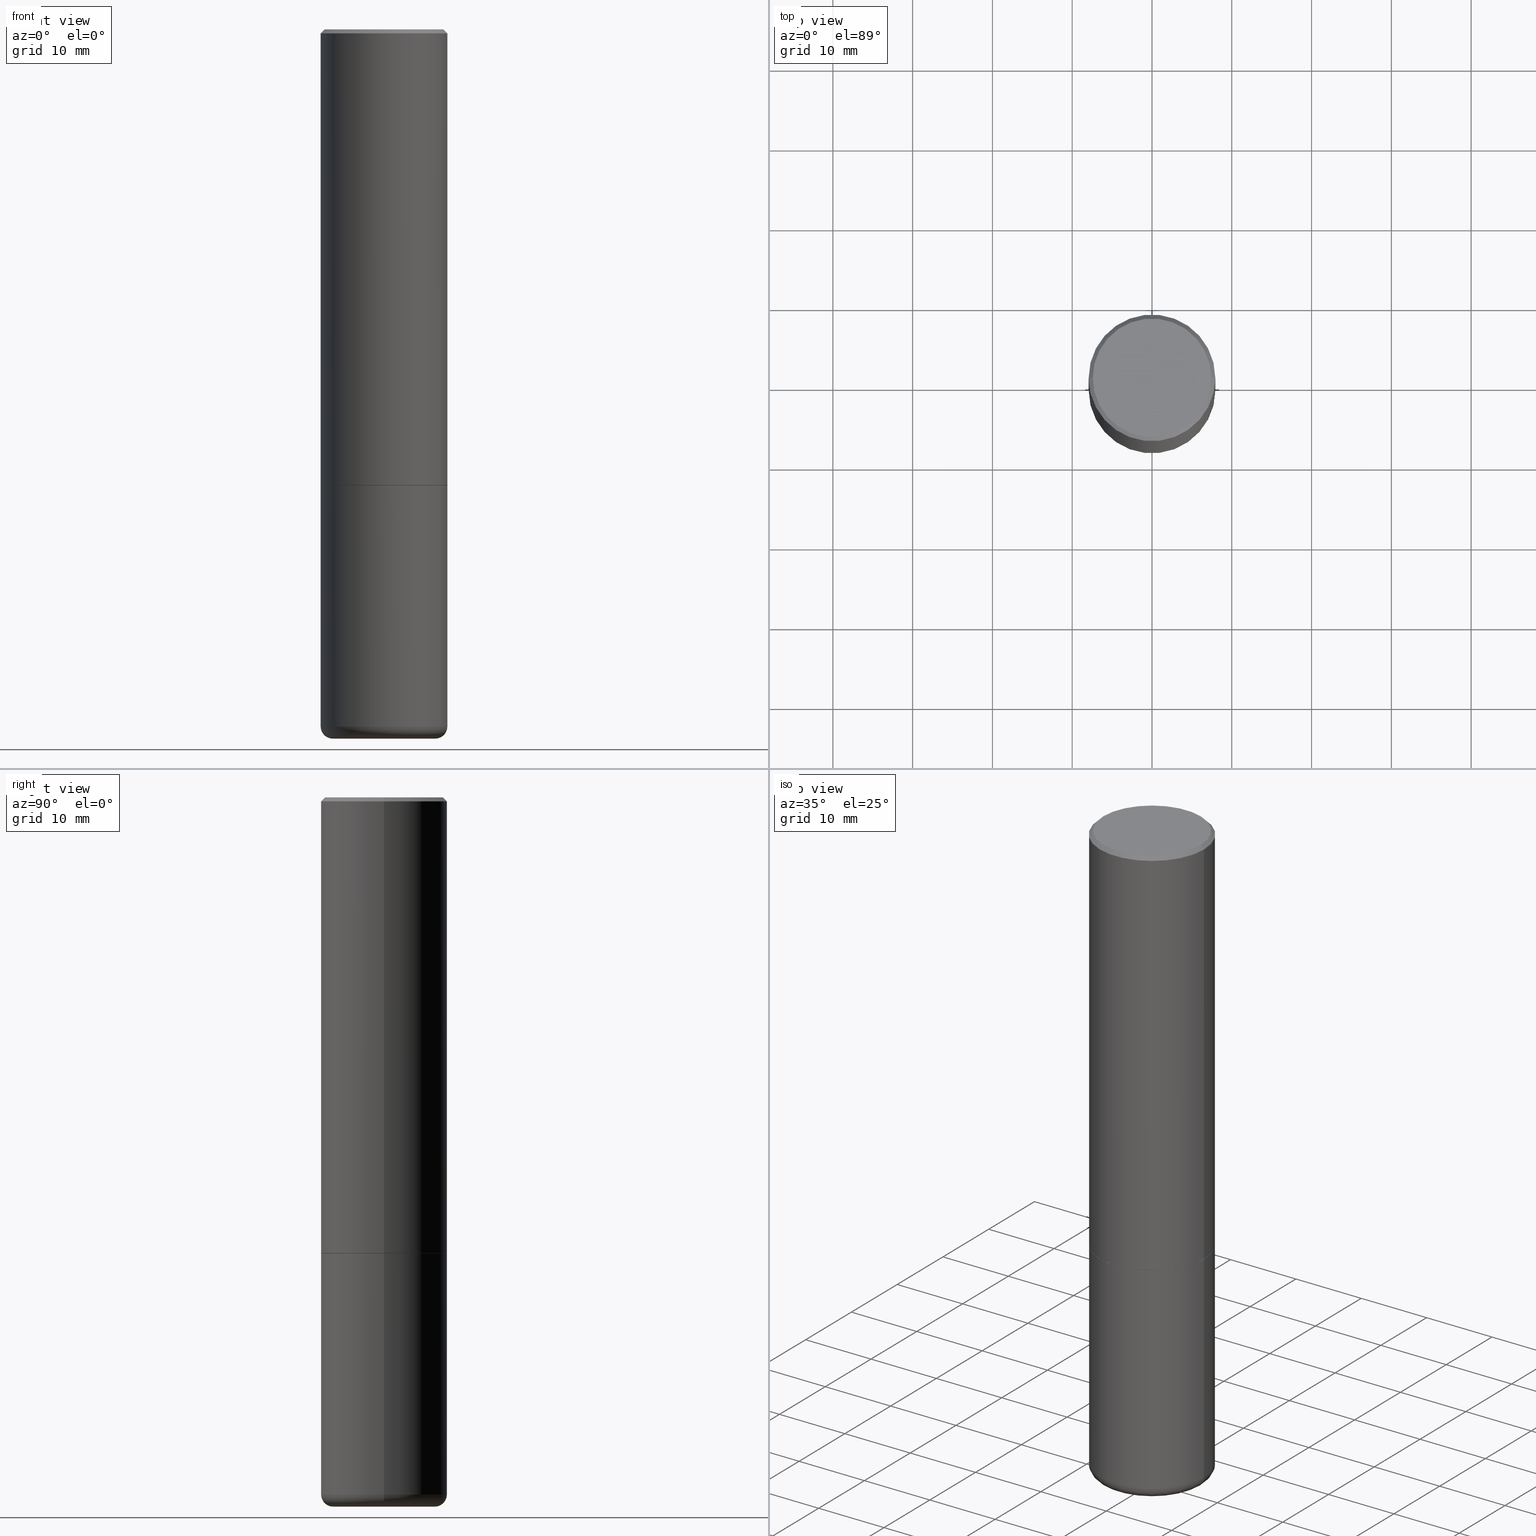
[diagram: canonical four-view strip — front | top / right | iso, engineering-drawing reading convention]
A machine part, canonical four-view strip (front | top / right | iso — engineering-drawing reading convention). The complete STEP part file that produces these views, byte-faithful:
ISO-10303-21;
HEADER;
FILE_DESCRIPTION (( 'STEP AP203' ),
    '1' );
FILE_NAME ('37270.STEP',
    '2024-03-01T22:48:51',
    ( '' ),
    ( '' ),
    'SwSTEP 2.0',
    'SolidWorks 2023',
    '' );
FILE_SCHEMA (( 'CONFIG_CONTROL_DESIGN' ));
ENDSEC;

DATA;
#1 = PLANE ( 'NONE',  #211 ) ;
#2 = ADVANCED_FACE ( 'NONE', ( #69 ), #208, .F. ) ;
#3 = DIRECTION ( 'NONE',  ( 1.000000000000000000, -6.982962677686265922E-15, 4.876176775795935793E-29 ) ) ;
#4 = CIRCLE ( 'NONE', #332, 0.3114999999999999991 ) ;
#5 = CARTESIAN_POINT ( 'NONE',  ( 0.000000000000000000, 0.000000000000000000, 0.000000000000000000 ) ) ;
#6 = CIRCLE ( 'NONE', #351, 0.3125000000000002220 ) ;
#7 = CARTESIAN_POINT ( 'NONE',  ( 8.412412693276869938E-29, -1.201069580562042103E-14, -3.439999999999999947 ) ) ;
#8 = VERTEX_POINT ( 'NONE', #393 ) ;
#9 = ORIENTED_EDGE ( 'NONE', *, *, #369, .T. ) ;
#10 = ORIENTED_EDGE ( 'NONE', *, *, #31, .F. ) ;
#11 = DIRECTION ( 'NONE',  ( -2.445468806185136877E-29, 3.491481338843145188E-15, 1.000000000000000000 ) ) ;
#12 = ADVANCED_FACE ( 'NONE', ( #176 ), #205, .T. ) ;
#13 = VECTOR ( 'NONE', #11, 39.37007874015748143 ) ;
#14 = ORIENTED_EDGE ( 'NONE', *, *, #95, .T. ) ;
#15 = CARTESIAN_POINT ( 'NONE',  ( 4.890937612370294178E-31, -6.982962677686321191E-17, -0.02000000000000008715 ) ) ;
#16 = ORIENTED_EDGE ( 'NONE', *, *, #244, .F. ) ;
#17 = DIRECTION ( 'NONE',  ( -2.445468806185136597E-29, 3.491481338843145583E-15, 1.000000000000000000 ) ) ;
#18 = CALENDAR_DATE ( 2024, 1, 3 ) ;
#19 = ADVANCED_FACE ( 'NONE', ( #397 ), #74, .T. ) ;
#20 = CARTESIAN_POINT ( 'NONE',  ( 0.000000000000000000, 0.000000000000000000, 0.000000000000000000 ) ) ;
#21 = CIRCLE ( 'NONE', #406, 0.2525000000000000022 ) ;
#22 = CC_DESIGN_APPROVAL ( #408, ( #266 ) ) ;
#23 = DIRECTION ( 'NONE',  ( 1.000000000000000000, -6.982962677686269866E-15, 0.000000000000000000 ) ) ;
#24 = DIRECTION ( 'NONE',  ( 1.000000000000000000, -6.982962677686269077E-15, 0.000000000000000000 ) ) ;
#25 = CARTESIAN_POINT ( 'NONE',  ( 5.502304813916556222E-29, -7.855833012397076871E-15, -2.249999999999999556 ) ) ;
#26 = EDGE_CURVE ( 'NONE', #8, #279, #212, .T. ) ;
#27 = AXIS2_PLACEMENT_3D ( 'NONE', #384, #292, #140 ) ;
#28 = CC_DESIGN_SECURITY_CLASSIFICATION ( #266, ( #203 ) ) ;
#29 = PRODUCT ( '37270', '37270', '', ( #402 ) ) ;
#30 = ORIENTED_EDGE ( 'NONE', *, *, #178, .F. ) ;
#31 = EDGE_CURVE ( 'NONE', #8, #308, #360, .T. ) ;
#32 = CARTESIAN_POINT ( 'NONE',  ( 0.2525000000000000022, -1.377389388173620432E-14, -3.439999999999999947 ) ) ;
#33 = VECTOR ( 'NONE', #378, 39.37007874015748143 ) ;
#34 = DIRECTION ( 'NONE',  ( 1.000000000000000000, -6.982962677686266711E-15, 4.873475059489872853E-29 ) ) ;
#35 = DIRECTION ( 'NONE',  ( 1.000000000000000000, -6.982962677686264344E-15, 4.883557194083111780E-29 ) ) ;
#36 = DIRECTION ( 'NONE',  ( 1.000000000000000000, -6.982962677686265922E-15, 0.000000000000000000 ) ) ;
#37 = ORIENTED_EDGE ( 'NONE', *, *, #52, .F. ) ;
#38 = ORIENTED_EDGE ( 'NONE', *, *, #264, .F. ) ;
#39 = CC_DESIGN_PERSON_AND_ORGANIZATION_ASSIGNMENT ( #85, #126, ( #203 ) ) ;
#40 = DIRECTION ( 'NONE',  ( -1.000000000000000000, 7.105427357600997914E-15, 0.000000000000000000 ) ) ;
#41 = VERTEX_POINT ( 'NONE', #106 ) ;
#42 = FACE_OUTER_BOUND ( 'NONE', #405, .T. ) ;
#43 = ORIENTED_EDGE ( 'NONE', *, *, #197, .T. ) ;
#44 = ADVANCED_FACE ( 'NONE', ( #150 ), #45, .T. ) ;
#45 = CYLINDRICAL_SURFACE ( 'NONE', #241, 0.3125000000000000000 ) ;
#46 = DATE_TIME_ROLE ( 'classification_date' ) ;
#47 = DIRECTION ( 'NONE',  ( -2.445468806185136597E-29, 3.491481338843145583E-15, 1.000000000000000000 ) ) ;
#48 = ORIENTED_EDGE ( 'NONE', *, *, #60, .F. ) ;
#49 = CIRCLE ( 'NONE', #155, 0.2925000000000002043 ) ;
#50 = DIRECTION ( 'NONE',  ( -2.445468806185136877E-29, 3.491481338843145188E-15, 1.000000000000000000 ) ) ;
#51 = DATE_AND_TIME ( #364, #287 ) ;
#52 = EDGE_CURVE ( 'NONE', #237, #323, #271, .T. ) ;
#53 = FACE_OUTER_BOUND ( 'NONE', #263, .T. ) ;
#54 = PERSON_AND_ORGANIZATION ( #109, #96 ) ;
#55 = ORIENTED_EDGE ( 'NONE', *, *, #142, .F. ) ;
#56 = CARTESIAN_POINT ( 'NONE',  ( 0.3125000000000001665, -2.182175836776959530E-15, 1.523805242436230636E-29 ) ) ;
#57 = VECTOR ( 'NONE', #320, 39.37007874015748143 ) ;
#58 = VECTOR ( 'NONE', #338, 39.37007874015748143 ) ;
#59 = DIRECTION ( 'NONE',  ( -2.445468806185136597E-29, 3.491481338843145583E-15, 1.000000000000000000 ) ) ;
#60 = EDGE_CURVE ( 'NONE', #298, #361, #174, .T. ) ;
#61 = EDGE_LOOP ( 'NONE', ( #168, #184 ) ) ;
#62 = CIRCLE ( 'NONE', #261, 0.05999999999999966471 ) ;
#63 = CC_DESIGN_APPROVAL ( #381, ( #203 ) ) ;
#64 = EDGE_CURVE ( 'NONE', #323, #361, #111, .T. ) ;
#65 = DIRECTION ( 'NONE',  ( 2.438088387897960049E-29, -3.491481338843145188E-15, -1.000000000000000000 ) ) ;
#66 = CONICAL_SURFACE ( 'NONE', #112, 0.3114999999999999991, 0.7853981633975165577 ) ;
#67 =( CONVERSION_BASED_UNIT ( 'INCH', #268 ) LENGTH_UNIT ( ) NAMED_UNIT ( #179 ) );
#68 = VERTEX_POINT ( 'NONE', #88 ) ;
#69 = FACE_OUTER_BOUND ( 'NONE', #61, .T. ) ;
#70 = DIRECTION ( 'NONE',  ( -2.445468806185136597E-29, 3.491481338843145583E-15, 1.000000000000000000 ) ) ;
#71 = VERTEX_POINT ( 'NONE', #336 ) ;
#72 = ORIENTED_EDGE ( 'NONE', *, *, #98, .F. ) ;
#73 = DIRECTION ( 'NONE',  ( -2.445468806185136597E-29, 3.491481338843145583E-15, 1.000000000000000000 ) ) ;
#74 = TOROIDAL_SURFACE ( 'NONE', #137, 0.2525000000000000022, 0.05999999999999968553 ) ;
#75 = CIRCLE ( 'NONE', #132, 0.3125000000000000000 ) ;
#76 = FACE_OUTER_BOUND ( 'NONE', #90, .T. ) ;
#77 = ORIENTED_EDGE ( 'NONE', *, *, #283, .T. ) ;
#78 = DIRECTION ( 'NONE',  ( -2.445468806185136597E-29, 3.491481338843145583E-15, 1.000000000000000000 ) ) ;
#79 = DATE_AND_TIME ( #297, #416 ) ;
#80 = ORIENTED_EDGE ( 'NONE', *, *, #264, .T. ) ;
#81 = DIRECTION ( 'NONE',  ( 0.7071067811865957564, -2.468850131082761932E-15, 0.7071067811864992780 ) ) ;
#82 = APPROVAL_DATE_TIME ( #113, #408 ) ;
#83 = ORIENTED_EDGE ( 'NONE', *, *, #369, .F. ) ;
#84 = CARTESIAN_POINT ( 'NONE',  ( 8.412412693276869938E-29, -1.201069580562042103E-14, -3.439999999999999947 ) ) ;
#85 = PERSON_AND_ORGANIZATION ( #109, #96 ) ;
#86 = ORIENTED_EDGE ( 'NONE', *, *, #355, .T. ) ;
#87 =( GEOMETRIC_REPRESENTATION_CONTEXT ( 3 ) GLOBAL_UNCERTAINTY_ASSIGNED_CONTEXT ( ( #217 ) ) GLOBAL_UNIT_ASSIGNED_CONTEXT ( ( #67, #324, #289 ) ) REPRESENTATION_CONTEXT ( 'NONE', 'WORKASPACE' ) );
#88 = CARTESIAN_POINT ( 'NONE',  ( -0.2925000000000002043, 2.077431396611664583E-15, -2.433052119357378304E-16 ) ) ;
#89 = SECURITY_CLASSIFICATION_LEVEL ( 'unclassified' ) ;
#90 = EDGE_LOOP ( 'NONE', ( #276, #86, #14, #255 ) ) ;
#91 = DIRECTION ( 'NONE',  ( 1.000000000000000000, -6.982962677686265133E-15, 0.000000000000000000 ) ) ;
#92 = PERSON_AND_ORGANIZATION ( #109, #96 ) ;
#93 = DIRECTION ( 'NONE',  ( -2.445468806185136597E-29, 3.491481338843145583E-15, 1.000000000000000000 ) ) ;
#94 = LINE ( 'NONE', #229, #309 ) ;
#95 = EDGE_CURVE ( 'NONE', #71, #41, #310, .T. ) ;
#96 = ORGANIZATION ( 'UNSPECIFIED', 'UNSPECIFIED', '' ) ;
#97 = CARTESIAN_POINT ( 'NONE',  ( 2.042516583223234512E-15, 0.2925000000000002043, -1.142910897579482572E-15 ) ) ;
#98 = EDGE_CURVE ( 'NONE', #361, #323, #75, .T. ) ;
#99 = CIRCLE ( 'NONE', #327, 0.3125000000000002220 ) ;
#100 = APPROVAL_PERSON_ORGANIZATION ( #92, #381, #373 ) ;
#101 = DIRECTION ( 'NONE',  ( 1.000000000000000000, -6.982962677686266711E-15, 4.876176775795935232E-29 ) ) ;
#102 = DIRECTION ( 'NONE',  ( 1.000000000000000000, -6.982962677686265922E-15, 0.000000000000000000 ) ) ;
#103 = EDGE_CURVE ( 'NONE', #119, #171, #21, .T. ) ;
#104 = CARTESIAN_POINT ( 'NONE',  ( 4.890937612370294178E-31, -6.982962677686321191E-17, -0.02000000000000008715 ) ) ;
#105 = DIRECTION ( 'NONE',  ( -2.445468806185136597E-29, 3.491481338843145583E-15, 1.000000000000000000 ) ) ;
#106 = CARTESIAN_POINT ( 'NONE',  ( 0.3125000000000002220, -1.003451736783519379E-14, -2.248999999999999666 ) ) ;
#107 = CARTESIAN_POINT ( 'NONE',  ( 5.949953061710752563E-45, -8.494956071168549013E-31, -2.433052119357234336E-16 ) ) ;
#108 = ORIENTED_EDGE ( 'NONE', *, *, #26, .T. ) ;
#109 = PERSON ( 'UNSPECIFIED', 'UNSPECIFIED', 'UNSPECIFIED', ('UNSPECIFIED'), ('UNSPECIFIED'), ('UNSPECIFIED') ) ;
#110 = DIRECTION ( 'NONE',  ( -2.445468806185136597E-29, 3.491481338843145583E-15, 1.000000000000000000 ) ) ;
#111 = CIRCLE ( 'NONE', #221, 0.3125000000000000000 ) ;
#112 = AXIS2_PLACEMENT_3D ( 'NONE', #387, #213, #36 ) ;
#113 = DATE_AND_TIME ( #300, #148 ) ;
#114 = CARTESIAN_POINT ( 'NONE',  ( 5.502304813916556222E-29, -7.855833012397076871E-15, -2.249999999999999556 ) ) ;
#115 = EDGE_LOOP ( 'NONE', ( #55, #363, #108, #330 ) ) ;
#116 = CARTESIAN_POINT ( 'NONE',  ( 0.3125000000000000000, -2.213735251080466911E-15, -0.02000000000000008715 ) ) ;
#117 = DESIGN_CONTEXT ( 'detailed design', #280, 'design' ) ;
#118 = DATE_AND_TIME ( #214, #294 ) ;
#119 = VERTEX_POINT ( 'NONE', #377 ) ;
#120 = CYLINDRICAL_SURFACE ( 'NONE', #146, 0.3125000000000000000 ) ;
#121 = APPROVAL_STATUS ( 'not_yet_approved' ) ;
#122 = DIRECTION ( 'NONE',  ( -2.445468806185136597E-29, 3.491481338843145583E-15, 1.000000000000000000 ) ) ;
#123 = PERSON_AND_ORGANIZATION_ROLE ( 'classification_officer' ) ;
#124 = AXIS2_PLACEMENT_3D ( 'NONE', #20, #245, #272 ) ;
#125 = CARTESIAN_POINT ( 'NONE',  ( 0.3125000000000000000, -2.213735251080466911E-15, -0.02000000000000008715 ) ) ;
#126 = PERSON_AND_ORGANIZATION_ROLE ( 'creator' ) ;
#127 = CARTESIAN_POINT ( 'NONE',  ( 8.559140821647976968E-29, -1.222018468595100619E-14, -3.499999999999999112 ) ) ;
#128 = ADVANCED_FACE ( 'NONE', ( #160 ), #331, .T. ) ;
#129 = CARTESIAN_POINT ( 'NONE',  ( -0.3124999999999998890, -9.790249756370109522E-15, -3.439999999999999947 ) ) ;
#130 = DIRECTION ( 'NONE',  ( 1.000000000000000000, -6.982962677686269077E-15, 0.000000000000000000 ) ) ;
#131 = CLOSED_SHELL ( 'NONE', ( #164, #133, #346, #44, #19, #233 ) ) ;
#132 = AXIS2_PLACEMENT_3D ( 'NONE', #306, #375, #91 ) ;
#133 = ADVANCED_FACE ( 'NONE', ( #53 ), #180, .T. ) ;
#134 = PLANE ( 'NONE',  #278 ) ;
#135 = ORIENTED_EDGE ( 'NONE', *, *, #244, .T. ) ;
#136 = DIRECTION ( 'NONE',  ( 2.438088387897960049E-29, -3.491481338843145188E-15, -1.000000000000000000 ) ) ;
#137 = AXIS2_PLACEMENT_3D ( 'NONE', #181, #110, #35 ) ;
#138 = AXIS2_PLACEMENT_3D ( 'NONE', #175, #105, #318 ) ;
#139 = LOCAL_TIME ( 17, 48, 51.00000000000000000, #254 ) ;
#140 = DIRECTION ( 'NONE',  ( -1.000000000000000000, 6.982962677686268288E-15, 0.000000000000000000 ) ) ;
#141 = EDGE_LOOP ( 'NONE', ( #143, #215, #392, #328 ) ) ;
#142 = EDGE_CURVE ( 'NONE', #308, #326, #304, .T. ) ;
#143 = ORIENTED_EDGE ( 'NONE', *, *, #178, .T. ) ;
#144 = CARTESIAN_POINT ( 'NONE',  ( 5.502304813916556222E-29, -7.855833012397076871E-15, -2.249999999999999556 ) ) ;
#145 = DIRECTION ( 'NONE',  ( 1.000000000000000000, -6.982962677686269077E-15, 0.000000000000000000 ) ) ;
#146 = AXIS2_PLACEMENT_3D ( 'NONE', #411, #198, #281 ) ;
#147 = ORIENTED_EDGE ( 'NONE', *, *, #52, .T. ) ;
#148 = LOCAL_TIME ( 17, 48, 51.00000000000000000, #367 ) ;
#149 = EDGE_CURVE ( 'NONE', #41, #323, #227, .T. ) ;
#150 = FACE_OUTER_BOUND ( 'NONE', #115, .T. ) ;
#151 = DIRECTION ( 'NONE',  ( 0.000000000000000000, 0.000000000000000000, 1.000000000000000000 ) ) ;
#152 = CARTESIAN_POINT ( 'NONE',  ( 5.502304813916556222E-29, -7.855833012397076871E-15, -2.249999999999999556 ) ) ;
#153 = EDGE_LOOP ( 'NONE', ( #399, #206, #16, #410 ) ) ;
#154 = DIRECTION ( 'NONE',  ( 1.000000000000000000, -6.982962677686266711E-15, 4.876176775795936353E-29 ) ) ;
#155 = AXIS2_PLACEMENT_3D ( 'NONE', #107, #209, #34 ) ;
#156 = CARTESIAN_POINT ( 'NONE',  ( 8.559140821647976968E-29, -1.222018468595100619E-14, -3.499999999999999112 ) ) ;
#157 = PERSON_AND_ORGANIZATION ( #109, #96 ) ;
#158 = EDGE_LOOP ( 'NONE', ( #201, #196 ) ) ;
#159 = DIRECTION ( 'NONE',  ( 1.000000000000000000, -6.982962677686264344E-15, 4.883557194083111780E-29 ) ) ;
#160 = FACE_OUTER_BOUND ( 'NONE', #353, .T. ) ;
#161 = CIRCLE ( 'NONE', #348, 0.3125000000000000000 ) ;
#162 = ORIENTED_EDGE ( 'NONE', *, *, #385, .T. ) ;
#163 = CARTESIAN_POINT ( 'NONE',  ( -0.3125000000000000000, 2.220446049250313081E-15, -1.537167215704658232E-29 ) ) ;
#164 = ADVANCED_FACE ( 'NONE', ( #302 ), #120, .T. ) ;
#165 = PLANE ( 'NONE',  #284 ) ;
#166 = CARTESIAN_POINT ( 'NONE',  ( -0.3114999999999999991, -5.637193936156142396E-15, -2.249999999999999556 ) ) ;
#167 = AXIS2_PLACEMENT_3D ( 'NONE', #312, #182, #101 ) ;
#168 = ORIENTED_EDGE ( 'NONE', *, *, #296, .F. ) ;
#169 = AXIS2_PLACEMENT_3D ( 'NONE', #127, #47, #248 ) ;
#170 = EDGE_CURVE ( 'NONE', #171, #119, #232, .T. ) ;
#171 = VERTEX_POINT ( 'NONE', #403 ) ;
#172 = DIRECTION ( 'NONE',  ( 1.000000000000000000, -6.982962677686266711E-15, 0.000000000000000000 ) ) ;
#173 = DIRECTION ( 'NONE',  ( 1.000000000000000000, -6.982962677686275388E-15, 0.000000000000000000 ) ) ;
#174 = LINE ( 'NONE', #366, #414 ) ;
#175 = CARTESIAN_POINT ( 'NONE',  ( 5.502304813916556222E-29, -7.855833012397076871E-15, -2.249999999999999556 ) ) ;
#176 = FACE_OUTER_BOUND ( 'NONE', #313, .T. ) ;
#177 = APPLICATION_CONTEXT ( 'configuration controlled 3d designs of mechanical parts and assemblies' ) ;
#178 = EDGE_CURVE ( 'NONE', #41, #298, #6, .T. ) ;
#179 = DIMENSIONAL_EXPONENTS ( 1.000000000000000000, 0.000000000000000000, 0.000000000000000000, 0.000000000000000000, 0.000000000000000000, 0.000000000000000000, 0.000000000000000000 ) ;
#180 = TOROIDAL_SURFACE ( 'NONE', #242, 0.2525000000000000022, 0.05999999999999968553 ) ;
#181 = CARTESIAN_POINT ( 'NONE',  ( 8.412412693276869938E-29, -1.201069580562042103E-14, -3.439999999999999947 ) ) ;
#182 = DIRECTION ( 'NONE',  ( -2.445468806185136597E-29, 3.491481338843145583E-15, 1.000000000000000000 ) ) ;
#183 = DIRECTION ( 'NONE',  ( -1.000000000000000000, 6.982962677686265922E-15, -4.876176775795935793E-29 ) ) ;
#184 = ORIENTED_EDGE ( 'NONE', *, *, #355, .F. ) ;
#185 = ORIENTED_EDGE ( 'NONE', *, *, #149, .T. ) ;
#186 = APPROVAL_ROLE ( '' ) ;
#187 = DIRECTION ( 'NONE',  ( 1.000000000000000000, -6.982962677686265922E-15, 0.000000000000000000 ) ) ;
#188 = CARTESIAN_POINT ( 'NONE',  ( 8.412412693276869938E-29, -1.201069580562042103E-14, -3.439999999999999947 ) ) ;
#189 = AXIS2_PLACEMENT_3D ( 'NONE', #7, #78, #329 ) ;
#190 = CIRCLE ( 'NONE', #199, 0.05999999999999966471 ) ;
#191 = APPROVAL_DATE_TIME ( #118, #340 ) ;
#192 = CC_DESIGN_DATE_AND_TIME_ASSIGNMENT ( #79, #46, ( #266 ) ) ;
#193 = CARTESIAN_POINT ( 'NONE',  ( 0.2925000000000002043, -2.110215457714321114E-15, -2.433052119357089383E-16 ) ) ;
#194 = ORIENTED_EDGE ( 'NONE', *, *, #64, .T. ) ;
#195 = CARTESIAN_POINT ( 'NONE',  ( 1.384764569555243428E-28, -4.646744703515429439E-15, -3.499999999999999112 ) ) ;
#196 = ORIENTED_EDGE ( 'NONE', *, *, #170, .F. ) ;
#197 = EDGE_CURVE ( 'NONE', #68, #361, #94, .T. ) ;
#198 = DIRECTION ( 'NONE',  ( -2.445468806185136597E-29, 3.491481338843145583E-15, 1.000000000000000000 ) ) ;
#199 = AXIS2_PLACEMENT_3D ( 'NONE', #325, #359, #40 ) ;
#200 = DIRECTION ( 'NONE',  ( 1.000000000000000000, -6.982962677686266711E-15, 4.873475059489872853E-29 ) ) ;
#201 = ORIENTED_EDGE ( 'NONE', *, *, #103, .F. ) ;
#202 = AXIS2_PLACEMENT_3D ( 'NONE', #5, #151, #391 ) ;
#203 = PRODUCT_DEFINITION_FORMATION_WITH_SPECIFIED_SOURCE ( 'ANY', '', #29, .NOT_KNOWN. ) ;
#204 = FACE_OUTER_BOUND ( 'NONE', #295, .T. ) ;
#205 = CONICAL_SURFACE ( 'NONE', #386, 0.3125000000000000000, 0.7853981633974469467 ) ;
#206 = ORIENTED_EDGE ( 'NONE', *, *, #142, .T. ) ;
#207 = EDGE_CURVE ( 'NONE', #68, #237, #230, .T. ) ;
#208 = PLANE ( 'NONE',  #210 ) ;
#209 = DIRECTION ( 'NONE',  ( -2.445468806185136597E-29, 3.491481338843145583E-15, 1.000000000000000000 ) ) ;
#210 = AXIS2_PLACEMENT_3D ( 'NONE', #152, #390, #3 ) ;
#211 = AXIS2_PLACEMENT_3D ( 'NONE', #144, #65, #183 ) ;
#212 = LINE ( 'NONE', #299, #13 ) ;
#213 = DIRECTION ( 'NONE',  ( -2.445468806185136597E-29, 3.491481338843145583E-15, 1.000000000000000000 ) ) ;
#214 = CALENDAR_DATE ( 2024, 1, 3 ) ;
#215 = ORIENTED_EDGE ( 'NONE', *, *, #60, .T. ) ;
#216 = EDGE_CURVE ( 'NONE', #308, #8, #265, .T. ) ;
#217 = UNCERTAINTY_MEASURE_WITH_UNIT (LENGTH_MEASURE( 1.000000000000000082E-05 ), #67, 'distance_accuracy_value', 'NONE');
#218 = ORIENTED_EDGE ( 'NONE', *, *, #103, .T. ) ;
#219 = CARTESIAN_POINT ( 'NONE',  ( 5.499859345110371740E-29, -7.852341531058233864E-15, -2.248999999999999666 ) ) ;
#220 = FACE_OUTER_BOUND ( 'NONE', #158, .T. ) ;
#221 = AXIS2_PLACEMENT_3D ( 'NONE', #15, #17, #257 ) ;
#222 = APPROVAL_DATE_TIME ( #51, #381 ) ;
#223 = ORIENTED_EDGE ( 'NONE', *, *, #98, .T. ) ;
#224 = DIRECTION ( 'NONE',  ( -2.445468806185136597E-29, 3.491481338843145583E-15, 1.000000000000000000 ) ) ;
#225 = APPROVAL_STATUS ( 'not_yet_approved' ) ;
#226 = EDGE_LOOP ( 'NONE', ( #368, #9 ) ) ;
#227 = LINE ( 'NONE', #56, #388 ) ;
#228 = DATE_TIME_ROLE ( 'creation_date' ) ;
#229 = CARTESIAN_POINT ( 'NONE',  ( -0.3125000000000000000, 2.112346210000095443E-15, -0.02000000000000008715 ) ) ;
#230 = CIRCLE ( 'NONE', #396, 0.2925000000000002043 ) ;
#231 = CC_DESIGN_DATE_AND_TIME_ASSIGNMENT ( #339, #228, ( #321 ) ) ;
#232 = CIRCLE ( 'NONE', #169, 0.2525000000000000022 ) ;
#233 = ADVANCED_FACE ( 'NONE', ( #220 ), #165, .T. ) ;
#234 = CARTESIAN_POINT ( 'NONE',  ( 0.3125000000000000000, -1.003800884917403522E-14, -2.249999999999999556 ) ) ;
#235 = ORIENTED_EDGE ( 'NONE', *, *, #314, .T. ) ;
#236 = AXIS2_PLACEMENT_3D ( 'NONE', #288, #70, #102 ) ;
#237 = VERTEX_POINT ( 'NONE', #193 ) ;
#238 = DIRECTION ( 'NONE',  ( 2.445468806185136597E-29, -3.491481338843145583E-15, -1.000000000000000000 ) ) ;
#239 = CARTESIAN_POINT ( 'NONE',  ( -0.3125000000000000000, 2.112346210000095443E-15, -0.02000000000000008715 ) ) ;
#240 = CARTESIAN_POINT ( 'NONE',  ( 0.000000000000000000, 0.000000000000000000, 0.000000000000000000 ) ) ;
#241 = AXIS2_PLACEMENT_3D ( 'NONE', #240, #73, #154 ) ;
#242 = AXIS2_PLACEMENT_3D ( 'NONE', #188, #277, #159 ) ;
#243 = COORDINATED_UNIVERSAL_TIME_OFFSET ( 5, 0, .BEHIND. ) ;
#244 = EDGE_CURVE ( 'NONE', #279, #326, #161, .T. ) ;
#245 = DIRECTION ( 'NONE',  ( -2.445468806185136597E-29, 3.491481338843145583E-15, 1.000000000000000000 ) ) ;
#246 = PERSON_AND_ORGANIZATION ( #109, #96 ) ;
#247 = VERTEX_POINT ( 'NONE', #166 ) ;
#248 = DIRECTION ( 'NONE',  ( 1.000000000000000000, -6.982962677686269866E-15, 0.000000000000000000 ) ) ;
#249 = COORDINATED_UNIVERSAL_TIME_OFFSET ( 5, 0, .BEHIND. ) ;
#250 = DIRECTION ( 'NONE',  ( -2.445468806185136597E-29, 3.491481338843145583E-15, 1.000000000000000000 ) ) ;
#251 = CONICAL_SURFACE ( 'NONE', #27, 0.3125000000000000000, 0.7853981633974469467 ) ;
#252 = ADVANCED_FACE ( 'NONE', ( #345 ), #134, .F. ) ;
#253 = CIRCLE ( 'NONE', #138, 0.3114999999999999991 ) ;
#254 = COORDINATED_UNIVERSAL_TIME_OFFSET ( 5, 0, .BEHIND. ) ;
#255 = ORIENTED_EDGE ( 'NONE', *, *, #273, .F. ) ;
#256 = MANIFOLD_SOLID_BREP ( 'Body-Move/Copy2[2]', #418 ) ;
#257 = DIRECTION ( 'NONE',  ( 1.000000000000000000, -6.982962677686265133E-15, 0.000000000000000000 ) ) ;
#258 = PERSON_AND_ORGANIZATION_ROLE ( 'design_owner' ) ;
#259 = DIRECTION ( 'NONE',  ( 1.000000000000000000, -6.982962677686266711E-15, 0.000000000000000000 ) ) ;
#260 = LINE ( 'NONE', #335, #33 ) ;
#261 = AXIS2_PLACEMENT_3D ( 'NONE', #32, #380, #173 ) ;
#262 = CC_DESIGN_PERSON_AND_ORGANIZATION_ASSIGNMENT ( #394, #307, ( #203 ) ) ;
#263 = EDGE_LOOP ( 'NONE', ( #218, #162, #10, #38 ) ) ;
#264 = EDGE_CURVE ( 'NONE', #119, #8, #62, .T. ) ;
#265 = CIRCLE ( 'NONE', #343, 0.3125000000000000000 ) ;
#266 = SECURITY_CLASSIFICATION ( '', '', #89 ) ;
#267 = MANIFOLD_SOLID_BREP ( 'Body-Move/Copy2[1]', #131 ) ;
#268 = LENGTH_MEASURE_WITH_UNIT ( LENGTH_MEASURE( 0.02539999999999999897 ), #270 );
#269 = EDGE_LOOP ( 'NONE', ( #374, #347, #80, #293 ) ) ;
#270 =( LENGTH_UNIT ( ) NAMED_UNIT ( * ) SI_UNIT ( $, .METRE. ) );
#271 = LINE ( 'NONE', #116, #57 ) ;
#272 = DIRECTION ( 'NONE',  ( 1.000000000000000000, -6.982962677686266711E-15, 4.876176775795935232E-29 ) ) ;
#273 = EDGE_CURVE ( 'NONE', #298, #41, #99, .T. ) ;
#274 = DIRECTION ( 'NONE',  ( -0.7071067811865465735, 2.468850131082246805E-15, -0.7071067811865484609 ) ) ;
#275 = COORDINATED_UNIVERSAL_TIME_OFFSET ( 5, 0, .BEHIND. ) ;
#276 = ORIENTED_EDGE ( 'NONE', *, *, #314, .F. ) ;
#277 = DIRECTION ( 'NONE',  ( -2.445468806185136597E-29, 3.491481338843145583E-15, 1.000000000000000000 ) ) ;
#278 = AXIS2_PLACEMENT_3D ( 'NONE', #97, #136, #317 ) ;
#279 = VERTEX_POINT ( 'NONE', #234 ) ;
#280 = APPLICATION_CONTEXT ( 'configuration controlled 3d designs of mechanical parts and assemblies' ) ;
#281 = DIRECTION ( 'NONE',  ( 1.000000000000000000, -6.982962677686266711E-15, 4.876176775795936353E-29 ) ) ;
#282 = DIRECTION ( 'NONE',  ( 2.438088387897960049E-29, -3.491481338843145188E-15, -1.000000000000000000 ) ) ;
#283 = EDGE_CURVE ( 'NONE', #326, #279, #415, .T. ) ;
#284 = AXIS2_PLACEMENT_3D ( 'NONE', #195, #282, #333 ) ;
#285 = FACE_OUTER_BOUND ( 'NONE', #141, .T. ) ;
#286 = CC_DESIGN_PERSON_AND_ORGANIZATION_ASSIGNMENT ( #303, #123, ( #266 ) ) ;
#287 = LOCAL_TIME ( 17, 48, 51.00000000000000000, #243 ) ;
#288 = CARTESIAN_POINT ( 'NONE',  ( 5.502304813916556222E-29, -7.855833012397076871E-15, -2.249999999999999556 ) ) ;
#289 =( NAMED_UNIT ( * ) SI_UNIT ( $, .STERADIAN. ) SOLID_ANGLE_UNIT ( ) );
#290 = ORIENTED_EDGE ( 'NONE', *, *, #207, .F. ) ;
#291 = PRODUCT_RELATED_PRODUCT_CATEGORY ( 'detail', '', ( #29 ) ) ;
#292 = DIRECTION ( 'NONE',  ( 2.445468806185136597E-29, -3.491481338843145583E-15, -1.000000000000000000 ) ) ;
#293 = ORIENTED_EDGE ( 'NONE', *, *, #216, .F. ) ;
#294 = LOCAL_TIME ( 17, 48, 51.00000000000000000, #275 ) ;
#295 = EDGE_LOOP ( 'NONE', ( #135, #77 ) ) ;
#296 = EDGE_CURVE ( 'NONE', #71, #247, #4, .T. ) ;
#297 = CALENDAR_DATE ( 2024, 1, 3 ) ;
#298 = VERTEX_POINT ( 'NONE', #412 ) ;
#299 = CARTESIAN_POINT ( 'NONE',  ( 0.3125000000000000000, -2.182175836776958347E-15, 1.523805242436230075E-29 ) ) ;
#300 = CALENDAR_DATE ( 2024, 1, 3 ) ;
#301 = EDGE_LOOP ( 'NONE', ( #356, #235, #30, #395 ) ) ;
#302 = FACE_OUTER_BOUND ( 'NONE', #153, .T. ) ;
#303 = PERSON_AND_ORGANIZATION ( #109, #96 ) ;
#304 = LINE ( 'NONE', #163, #58 ) ;
#305 = APPLICATION_PROTOCOL_DEFINITION ( 'international standard', 'config_control_design', 1994, #280 ) ;
#306 = CARTESIAN_POINT ( 'NONE',  ( 4.890937612370294178E-31, -6.982962677686321191E-17, -0.02000000000000008715 ) ) ;
#307 = PERSON_AND_ORGANIZATION_ROLE ( 'design_supplier' ) ;
#308 = VERTEX_POINT ( 'NONE', #129 ) ;
#309 = VECTOR ( 'NONE', #274, 39.37007874015748143 ) ;
#310 = LINE ( 'NONE', #401, #341 ) ;
#311 = CC_DESIGN_PERSON_AND_ORGANIZATION_ASSIGNMENT ( #246, #404, ( #321 ) ) ;
#312 = CARTESIAN_POINT ( 'NONE',  ( 0.000000000000000000, 0.000000000000000000, 0.000000000000000000 ) ) ;
#313 = EDGE_LOOP ( 'NONE', ( #37, #290, #43, #223 ) ) ;
#314 = EDGE_CURVE ( 'NONE', #247, #298, #260, .T. ) ;
#315 = DIRECTION ( 'NONE',  ( -2.445468806185136597E-29, 3.491481338843145583E-15, 1.000000000000000000 ) ) ;
#316 = DIRECTION ( 'NONE',  ( -2.445468806185136597E-29, 3.491481338843145583E-15, 1.000000000000000000 ) ) ;
#317 = DIRECTION ( 'NONE',  ( -1.000000000000000000, 6.982962677686265922E-15, -4.876176775795935793E-29 ) ) ;
#318 = DIRECTION ( 'NONE',  ( 1.000000000000000000, -6.982962677686265922E-15, 0.000000000000000000 ) ) ;
#319 = APPROVAL_PERSON_ORGANIZATION ( #376, #408, #186 ) ;
#320 = DIRECTION ( 'NONE',  ( 0.7071067811865465735, -7.319954787623252890E-15, -0.7071067811865484609 ) ) ;
#321 = PRODUCT_DEFINITION ( 'UNKNOWN', '', #203, #117 ) ;
#322 = FACE_OUTER_BOUND ( 'NONE', #301, .T. ) ;
#323 = VERTEX_POINT ( 'NONE', #125 ) ;
#324 =( NAMED_UNIT ( * ) PLANE_ANGLE_UNIT ( ) SI_UNIT ( $, .RADIAN. ) );
#325 = CARTESIAN_POINT ( 'NONE',  ( -0.2525000000000000022, -1.021657539782616686E-14, -3.439999999999999947 ) ) ;
#326 = VERTEX_POINT ( 'NONE', #379 ) ;
#327 = AXIS2_PLACEMENT_3D ( 'NONE', #219, #316, #172 ) ;
#328 = ORIENTED_EDGE ( 'NONE', *, *, #149, .F. ) ;
#329 = DIRECTION ( 'NONE',  ( 1.000000000000000000, -6.982962677686269077E-15, 0.000000000000000000 ) ) ;
#330 = ORIENTED_EDGE ( 'NONE', *, *, #283, .F. ) ;
#331 = CYLINDRICAL_SURFACE ( 'NONE', #124, 0.3125000000000001665 ) ;
#332 = AXIS2_PLACEMENT_3D ( 'NONE', #114, #93, #187 ) ;
#333 = DIRECTION ( 'NONE',  ( -1.000000000000000000, 6.982962677686265922E-15, -4.876176775795935793E-29 ) ) ;
#334 = ADVANCED_FACE ( 'NONE', ( #285 ), #344, .T. ) ;
#335 = CARTESIAN_POINT ( 'NONE',  ( -0.3114999999999999991, -5.642492390504364798E-15, -2.249999999999999556 ) ) ;
#336 = CARTESIAN_POINT ( 'NONE',  ( 0.3114999999999999991, -1.003102588649634920E-14, -2.249999999999999556 ) ) ;
#337 = SHAPE_DEFINITION_REPRESENTATION ( #383, #358 ) ;
#338 = DIRECTION ( 'NONE',  ( -2.445468806185136877E-29, 3.491481338843145188E-15, 1.000000000000000000 ) ) ;
#339 = DATE_AND_TIME ( #18, #139 ) ;
#340 = APPROVAL ( #225, 'UNSPECIFIED' ) ;
#341 = VECTOR ( 'NONE', #81, 39.37007874015748143 ) ;
#342 = CARTESIAN_POINT ( 'NONE',  ( 5.949953061710752563E-45, -8.494956071168549013E-31, -2.433052119357234336E-16 ) ) ;
#343 = AXIS2_PLACEMENT_3D ( 'NONE', #84, #224, #24 ) ;
#344 = CYLINDRICAL_SURFACE ( 'NONE', #167, 0.3125000000000001665 ) ;
#345 = FACE_OUTER_BOUND ( 'NONE', #226, .T. ) ;
#346 = ADVANCED_FACE ( 'NONE', ( #204 ), #1, .F. ) ;
#347 = ORIENTED_EDGE ( 'NONE', *, *, #170, .T. ) ;
#348 = AXIS2_PLACEMENT_3D ( 'NONE', #413, #122, #130 ) ;
#349 = CC_DESIGN_APPROVAL ( #340, ( #321 ) ) ;
#350 = ADVANCED_FACE ( 'NONE', ( #322 ), #371, .T. ) ;
#351 = AXIS2_PLACEMENT_3D ( 'NONE', #372, #370, #259 ) ;
#352 = APPLICATION_PROTOCOL_DEFINITION ( 'international standard', 'config_control_design', 1994, #177 ) ;
#353 = EDGE_LOOP ( 'NONE', ( #48, #357, #185, #72 ) ) ;
#354 = DIRECTION ( 'NONE',  ( -1.000000000000000000, 6.982962677686268288E-15, 0.000000000000000000 ) ) ;
#355 = EDGE_CURVE ( 'NONE', #247, #71, #253, .T. ) ;
#356 = ORIENTED_EDGE ( 'NONE', *, *, #296, .T. ) ;
#357 = ORIENTED_EDGE ( 'NONE', *, *, #273, .T. ) ;
#358 = ADVANCED_BREP_SHAPE_REPRESENTATION ( '37270', ( #267, #256, #202 ), #87 ) ;
#359 = DIRECTION ( 'NONE',  ( 7.105427357601001859E-15, 1.000000000000000000, -3.491481338843145583E-15 ) ) ;
#360 = CIRCLE ( 'NONE', #189, 0.3125000000000000000 ) ;
#361 = VERTEX_POINT ( 'NONE', #239 ) ;
#362 = APPROVAL_PERSON_ORGANIZATION ( #157, #340, #409 ) ;
#363 = ORIENTED_EDGE ( 'NONE', *, *, #216, .T. ) ;
#364 = CALENDAR_DATE ( 2024, 1, 3 ) ;
#365 = ORIENTED_EDGE ( 'NONE', *, *, #197, .F. ) ;
#366 = CARTESIAN_POINT ( 'NONE',  ( -0.3125000000000001665, 2.220446049250314264E-15, -1.537167215704658792E-29 ) ) ;
#367 = COORDINATED_UNIVERSAL_TIME_OFFSET ( 5, 0, .BEHIND. ) ;
#368 = ORIENTED_EDGE ( 'NONE', *, *, #207, .T. ) ;
#369 = EDGE_CURVE ( 'NONE', #237, #68, #49, .T. ) ;
#370 = DIRECTION ( 'NONE',  ( -2.445468806185136597E-29, 3.491481338843145583E-15, 1.000000000000000000 ) ) ;
#371 = CONICAL_SURFACE ( 'NONE', #236, 0.3114999999999999991, 0.7853981633975165577 ) ;
#372 = CARTESIAN_POINT ( 'NONE',  ( 5.499859345110371740E-29, -7.852341531058233864E-15, -2.248999999999999666 ) ) ;
#373 = APPROVAL_ROLE ( '' ) ;
#374 = ORIENTED_EDGE ( 'NONE', *, *, #385, .F. ) ;
#375 = DIRECTION ( 'NONE',  ( -2.445468806185136597E-29, 3.491481338843145583E-15, 1.000000000000000000 ) ) ;
#376 = PERSON_AND_ORGANIZATION ( #109, #96 ) ;
#377 = CARTESIAN_POINT ( 'NONE',  ( 0.2525000000000000022, -1.398338276206678948E-14, -3.499999999999999112 ) ) ;
#378 = DIRECTION ( 'NONE',  ( -0.7071067811865957564, 7.493145998870527710E-15, 0.7071067811864992780 ) ) ;
#379 = CARTESIAN_POINT ( 'NONE',  ( -0.3125000000000000000, -7.712818359758435078E-15, -2.249999999999999556 ) ) ;
#380 = DIRECTION ( 'NONE',  ( -6.982962677686266711E-15, -1.000000000000000000, 3.491481338843145583E-15 ) ) ;
#381 = APPROVAL ( #121, 'UNSPECIFIED' ) ;
#382 = AXIS2_PLACEMENT_3D ( 'NONE', #25, #315, #145 ) ;
#383 = PRODUCT_DEFINITION_SHAPE ( 'NONE', 'NONE',  #321 ) ;
#384 = CARTESIAN_POINT ( 'NONE',  ( 4.890937612370294178E-31, -6.982962677686321191E-17, -0.02000000000000008715 ) ) ;
#385 = EDGE_CURVE ( 'NONE', #171, #308, #190, .T. ) ;
#386 = AXIS2_PLACEMENT_3D ( 'NONE', #104, #238, #354 ) ;
#387 = CARTESIAN_POINT ( 'NONE',  ( 5.502304813916556222E-29, -7.855833012397076871E-15, -2.249999999999999556 ) ) ;
#388 = VECTOR ( 'NONE', #50, 39.37007874015748143 ) ;
#389 = ADVANCED_FACE ( 'NONE', ( #76 ), #66, .T. ) ;
#390 = DIRECTION ( 'NONE',  ( -2.438088387897960049E-29, 3.491481338843145188E-15, 1.000000000000000000 ) ) ;
#391 = DIRECTION ( 'NONE',  ( 1.000000000000000000, 0.000000000000000000, 0.000000000000000000 ) ) ;
#392 = ORIENTED_EDGE ( 'NONE', *, *, #64, .F. ) ;
#393 = CARTESIAN_POINT ( 'NONE',  ( 0.3124999999999998890, -1.419287164239737937E-14, -3.439999999999999947 ) ) ;
#394 = PERSON_AND_ORGANIZATION ( #109, #96 ) ;
#395 = ORIENTED_EDGE ( 'NONE', *, *, #95, .F. ) ;
#396 = AXIS2_PLACEMENT_3D ( 'NONE', #342, #59, #200 ) ;
#397 = FACE_OUTER_BOUND ( 'NONE', #269, .T. ) ;
#398 = APPROVAL_STATUS ( 'not_yet_approved' ) ;
#399 = ORIENTED_EDGE ( 'NONE', *, *, #31, .T. ) ;
#400 = CC_DESIGN_PERSON_AND_ORGANIZATION_ASSIGNMENT ( #54, #258, ( #29 ) ) ;
#401 = CARTESIAN_POINT ( 'NONE',  ( 0.3114999999999999991, -1.003102588649634920E-14, -2.249999999999999556 ) ) ;
#402 = MECHANICAL_CONTEXT ( 'NONE', #177, 'mechanical' ) ;
#403 = CARTESIAN_POINT ( 'NONE',  ( -0.2525000000000000022, -1.010815701726343156E-14, -3.499999999999999112 ) ) ;
#404 = PERSON_AND_ORGANIZATION_ROLE ( 'creator' ) ;
#405 = EDGE_LOOP ( 'NONE', ( #83, #147, #194, #365 ) ) ;
#406 = AXIS2_PLACEMENT_3D ( 'NONE', #156, #250, #23 ) ;
#407 = DIRECTION ( 'NONE',  ( -2.445468806185136877E-29, 3.491481338843145188E-15, 1.000000000000000000 ) ) ;
#408 = APPROVAL ( #398, 'UNSPECIFIED' ) ;
#409 = APPROVAL_ROLE ( '' ) ;
#410 = ORIENTED_EDGE ( 'NONE', *, *, #26, .F. ) ;
#411 = CARTESIAN_POINT ( 'NONE',  ( 0.000000000000000000, 0.000000000000000000, 0.000000000000000000 ) ) ;
#412 = CARTESIAN_POINT ( 'NONE',  ( -0.3125000000000002220, -1.740639529667233725E-15, -2.248999999999999666 ) ) ;
#413 = CARTESIAN_POINT ( 'NONE',  ( 5.502304813916556222E-29, -7.855833012397076871E-15, -2.249999999999999556 ) ) ;
#414 = VECTOR ( 'NONE', #407, 39.37007874015748143 ) ;
#415 = CIRCLE ( 'NONE', #382, 0.3125000000000000000 ) ;
#416 = LOCAL_TIME ( 17, 48, 51.00000000000000000, #249 ) ;
#417 = ADVANCED_FACE ( 'NONE', ( #42 ), #251, .T. ) ;
#418 = CLOSED_SHELL ( 'NONE', ( #350, #334, #417, #12, #128, #389, #2, #252 ) ) ;
ENDSEC;
END-ISO-10303-21;
